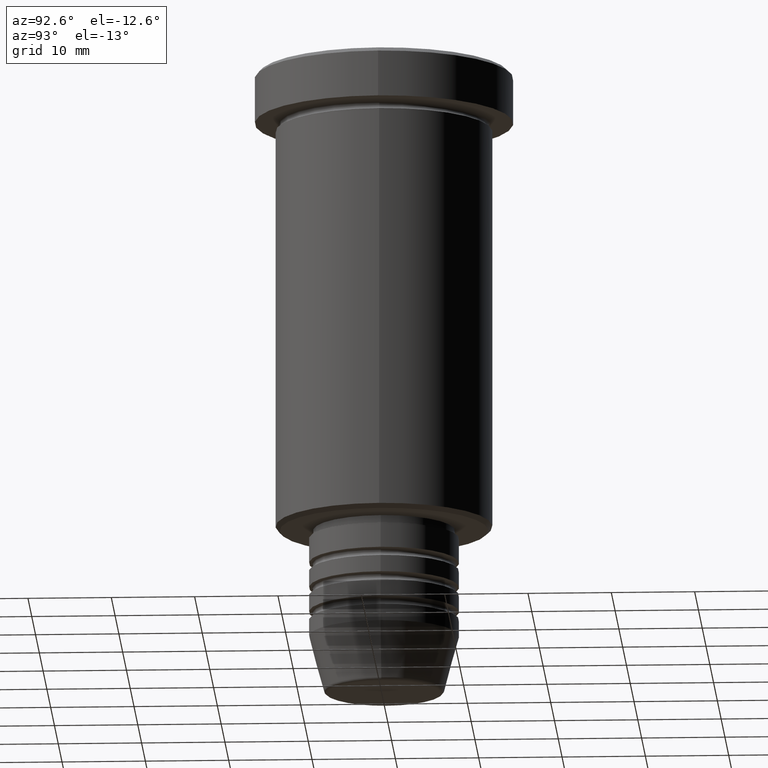
[diagram: clean part render]
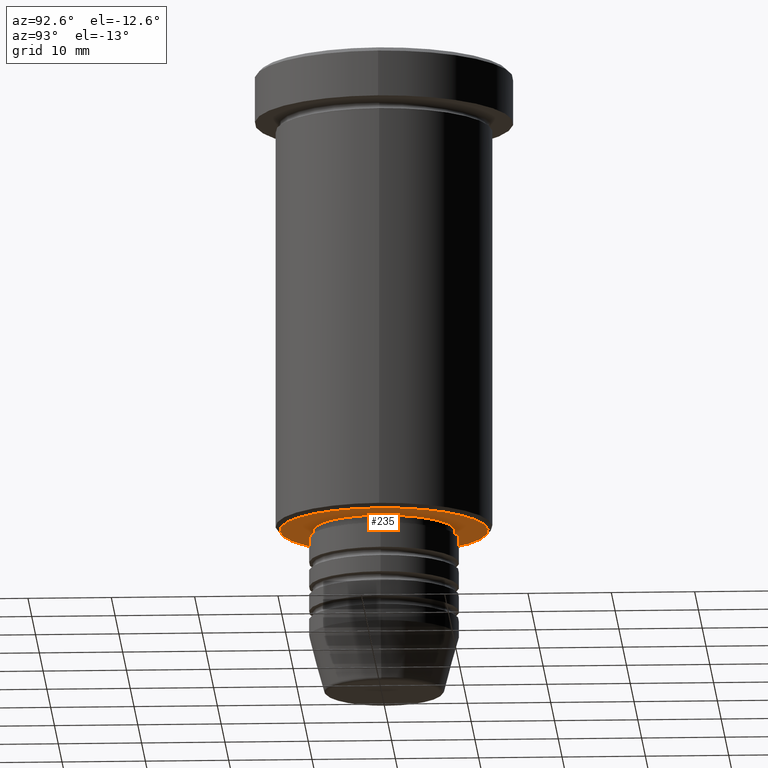
[diagram: same view with one face highlighted and labeled with its STEP entity id]
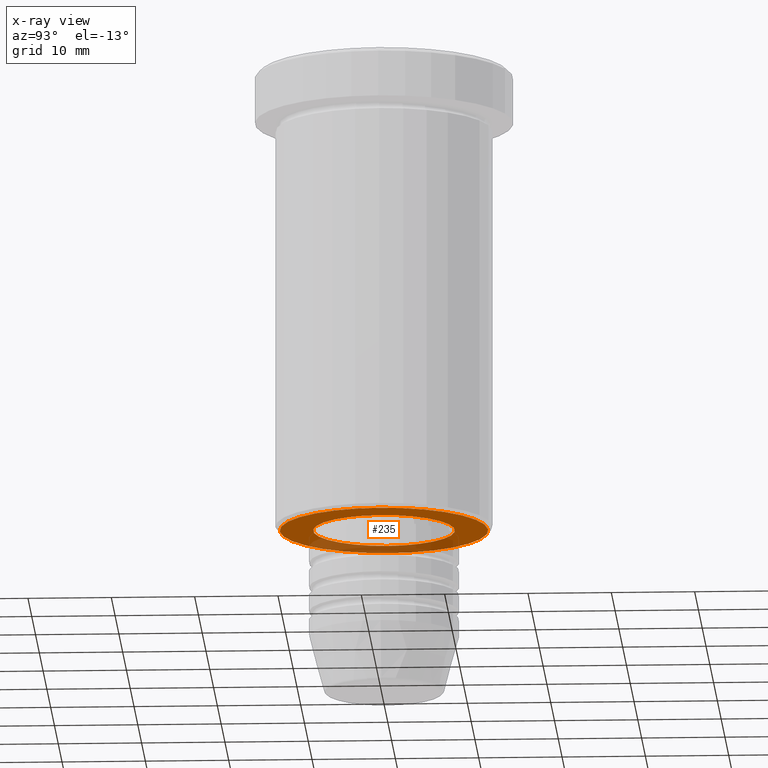
[diagram: x-ray of the same camera — body ghosted, the highlighted face saturated]
A machine part, auxiliary view. The second image highlights one B-rep face of the part: STEP entity #235.
The next image is the same camera in x-ray: the body ghosted, the highlighted face saturated — about 30% of this face is hidden behind the body in this view.
In plain terms, the highlighted planar face has unit normal (0, 0, -1).
Its self-contained STEP definition (entity closure, byte-faithful):
#5 = ORIENTED_EDGE ( 'NONE', *, *, #406, .T. ) ;
#48 = AXIS2_PLACEMENT_3D ( 'NONE', #738, #205, #543 ) ;
#58 = CARTESIAN_POINT ( 'NONE',  ( -8.499999999999998224, 1.040949779275249943E-15, -56.00000000000000711 ) ) ;
#77 = EDGE_LOOP ( 'NONE', ( #5, #102 ) ) ;
#102 = ORIENTED_EDGE ( 'NONE', *, *, #1069, .T. ) ;
#107 = AXIS2_PLACEMENT_3D ( 'NONE', #1118, #480, #1125 ) ;
#189 = FACE_BOUND ( 'NONE', #77, .T. ) ;
#205 = DIRECTION ( 'NONE',  ( -0.000000000000000000, -0.000000000000000000, 1.000000000000000000 ) ) ;
#221 = ORIENTED_EDGE ( 'NONE', *, *, #739, .T. ) ;
#235 = ADVANCED_FACE ( 'NONE', ( #1088, #189 ), #356, .T. ) ;
#238 = VERTEX_POINT ( 'NONE', #655 ) ;
#273 = CIRCLE ( 'NONE', #107, 8.499999999999998224 ) ;
#279 = CARTESIAN_POINT ( 'NONE',  ( 0.000000000000000000, 13.00000000000000000, -56.00000000000000711 ) ) ;
#323 = DIRECTION ( 'NONE',  ( 0.000000000000000000, 0.000000000000000000, -1.000000000000000000 ) ) ;
#356 = PLANE ( 'NONE',  #1062 ) ;
#362 = EDGE_CURVE ( 'NONE', #238, #957, #843, .T. ) ;
#406 = EDGE_CURVE ( 'NONE', #1123, #576, #273, .T. ) ;
#412 = AXIS2_PLACEMENT_3D ( 'NONE', #641, #815, #462 ) ;
#438 = AXIS2_PLACEMENT_3D ( 'NONE', #677, #323, #1025 ) ;
#462 = DIRECTION ( 'NONE',  ( -1.000000000000000000, 0.000000000000000000, 0.000000000000000000 ) ) ;
#480 = DIRECTION ( 'NONE',  ( -0.000000000000000000, -0.000000000000000000, 1.000000000000000000 ) ) ;
#535 = DIRECTION ( 'NONE',  ( -1.000000000000000000, 0.000000000000000000, -0.000000000000000000 ) ) ;
#543 = DIRECTION ( 'NONE',  ( 1.000000000000000000, 0.000000000000000000, 0.000000000000000000 ) ) ;
#565 = CIRCLE ( 'NONE', #48, 8.499999999999998224 ) ;
#576 = VERTEX_POINT ( 'NONE', #58 ) ;
#641 = CARTESIAN_POINT ( 'NONE',  ( 0.000000000000000000, 0.000000000000000000, -56.00000000000000711 ) ) ;
#655 = CARTESIAN_POINT ( 'NONE',  ( -12.49999999999999112, 1.561424668912874519E-15, -56.00000000000000711 ) ) ;
#677 = CARTESIAN_POINT ( 'NONE',  ( 0.000000000000000000, 0.000000000000000000, -56.00000000000000711 ) ) ;
#738 = CARTESIAN_POINT ( 'NONE',  ( 0.000000000000000000, 0.000000000000000000, -56.00000000000000711 ) ) ;
#739 = EDGE_CURVE ( 'NONE', #957, #238, #1165, .T. ) ;
#744 = ORIENTED_EDGE ( 'NONE', *, *, #362, .T. ) ;
#745 = CARTESIAN_POINT ( 'NONE',  ( 8.499999999999998224, 0.000000000000000000, -56.00000000000000711 ) ) ;
#815 = DIRECTION ( 'NONE',  ( 0.000000000000000000, 0.000000000000000000, -1.000000000000000000 ) ) ;
#843 = CIRCLE ( 'NONE', #438, 12.49999999999999112 ) ;
#957 = VERTEX_POINT ( 'NONE', #1080 ) ;
#1025 = DIRECTION ( 'NONE',  ( -1.000000000000000000, 0.000000000000000000, 0.000000000000000000 ) ) ;
#1062 = AXIS2_PLACEMENT_3D ( 'NONE', #279, #1076, #535 ) ;
#1069 = EDGE_CURVE ( 'NONE', #576, #1123, #565, .T. ) ;
#1076 = DIRECTION ( 'NONE',  ( 0.000000000000000000, 0.000000000000000000, -1.000000000000000000 ) ) ;
#1080 = CARTESIAN_POINT ( 'NONE',  ( 12.49999999999999112, 0.000000000000000000, -56.00000000000000711 ) ) ;
#1088 = FACE_OUTER_BOUND ( 'NONE', #1113, .T. ) ;
#1113 = EDGE_LOOP ( 'NONE', ( #221, #744 ) ) ;
#1118 = CARTESIAN_POINT ( 'NONE',  ( 0.000000000000000000, 0.000000000000000000, -56.00000000000000711 ) ) ;
#1123 = VERTEX_POINT ( 'NONE', #745 ) ;
#1125 = DIRECTION ( 'NONE',  ( 1.000000000000000000, 0.000000000000000000, 0.000000000000000000 ) ) ;
#1165 = CIRCLE ( 'NONE', #412, 12.49999999999999112 ) ;